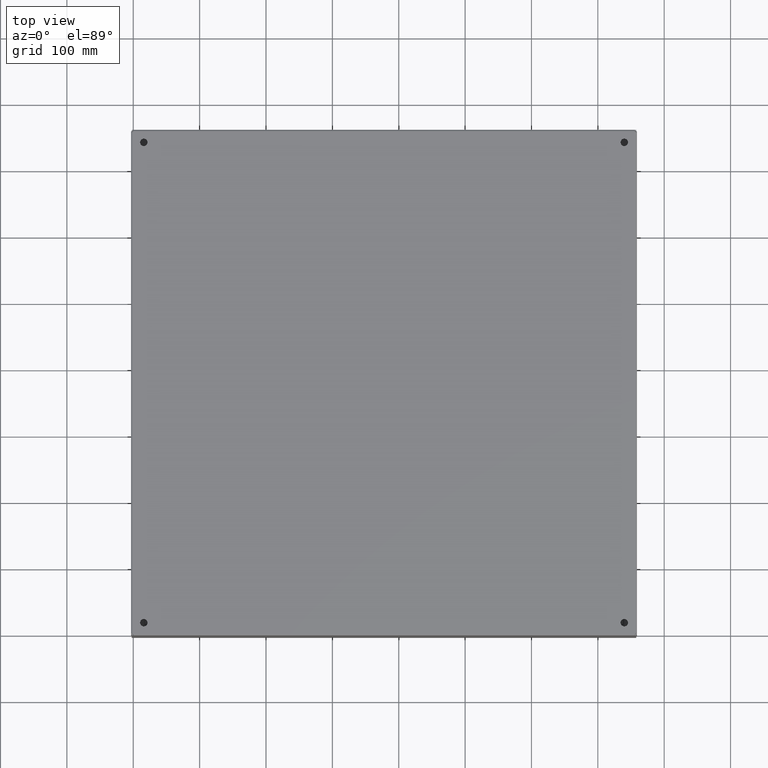
[diagram: clean part render]
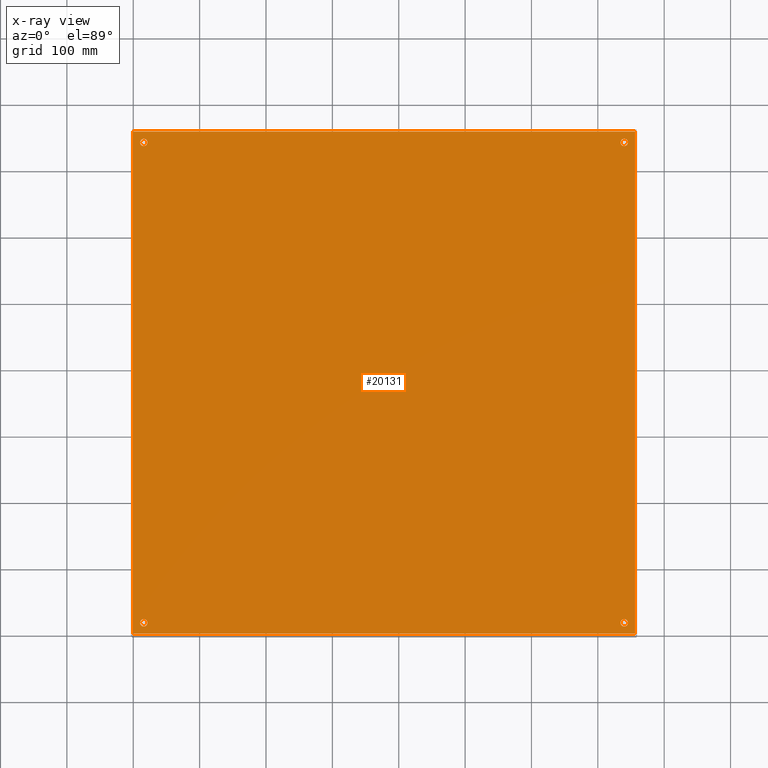
[diagram: x-ray — body ghosted, one internal face saturated and labeled with its STEP entity id]
A machine part, top view, then the same camera in x-ray: the body is ghosted and one INTERNAL B-rep face — a face not visible from any outside direction — is saturated and labeled: STEP entity #20131.
In plain terms, the highlighted planar face has unit normal (0, -0, -1).
Its self-contained STEP definition (entity closure, byte-faithful):
#15287=CARTESIAN_POINT('',(0.531249999999996,0.750000000000002,0.074000000000000));
#15288=VERTEX_POINT('',#15287);
#15289=CARTESIAN_POINT('',(0.749999999999996,0.750000000000002,0.074000000000000));
#15290=DIRECTION('',(0.0,0.0,-1.0));
#15291=DIRECTION('',(1.0,0.0,0.0));
#15292=AXIS2_PLACEMENT_3D('',#15289,#15290,#15291);
#15293=CIRCLE('',#15292,0.218750000000000);
#15294=EDGE_CURVE('',#15288,#15288,#15293,.T.);
#15315=CARTESIAN_POINT('',(29.031249999999972,0.750000000000002,0.074000000000000));
#15316=VERTEX_POINT('',#15315);
#15317=CARTESIAN_POINT('',(29.249999999999975,0.750000000000002,0.074000000000000));
#15318=DIRECTION('',(0.0,0.0,-1.0));
#15319=DIRECTION('',(1.0,0.0,0.0));
#15320=AXIS2_PLACEMENT_3D('',#15317,#15318,#15319);
#15321=CIRCLE('',#15320,0.218750000000000);
#15322=EDGE_CURVE('',#15316,#15316,#15321,.T.);
#15343=CARTESIAN_POINT('',(0.531249999999997,29.250000000000014,0.074000000000000));
#15344=VERTEX_POINT('',#15343);
#15345=CARTESIAN_POINT('',(0.749999999999997,29.250000000000014,0.074000000000000));
#15346=DIRECTION('',(0.0,0.0,-1.0));
#15347=DIRECTION('',(1.0,0.0,0.0));
#15348=AXIS2_PLACEMENT_3D('',#15345,#15346,#15347);
#15349=CIRCLE('',#15348,0.218750000000000);
#15350=EDGE_CURVE('',#15344,#15344,#15349,.T.);
#15371=CARTESIAN_POINT('',(29.031249999999972,29.250000000000014,0.074000000000000));
#15372=VERTEX_POINT('',#15371);
#15373=CARTESIAN_POINT('',(29.249999999999975,29.250000000000014,0.074000000000000));
#15374=DIRECTION('',(0.0,0.0,-1.0));
#15375=DIRECTION('',(1.0,0.0,0.0));
#15376=AXIS2_PLACEMENT_3D('',#15373,#15374,#15375);
#15377=CIRCLE('',#15376,0.218750000000000);
#15378=EDGE_CURVE('',#15372,#15372,#15377,.T.);
#18869=CARTESIAN_POINT('',(29.894749999999995,29.882766839324393,0.074000000000000));
#18870=VERTEX_POINT('',#18869);
#18880=CARTESIAN_POINT('',(29.894749999999995,0.117233160675640,0.074000000000000));
#18881=VERTEX_POINT('',#18880);
#18882=CARTESIAN_POINT('',(29.894749999999995,0.117233160675639,0.074000000000000));
#18883=DIRECTION('',(0.0,1.0,0.0));
#18884=VECTOR('',#18883,29.765533678648755);
#18885=LINE('',#18882,#18884);
#18886=EDGE_CURVE('',#18881,#18870,#18885,.T.);
#19182=CARTESIAN_POINT('',(0.117233160675618,29.894750000000009,0.074000000000006));
#19183=VERTEX_POINT('',#19182);
#19193=CARTESIAN_POINT('',(29.882766839324383,29.894750000000009,0.074000000000000));
#19194=VERTEX_POINT('',#19193);
#19195=CARTESIAN_POINT('',(29.882766839324383,29.894750000000009,0.074000000000000));
#19196=DIRECTION('',(-1.0,0.0,0.0));
#19197=VECTOR('',#19196,29.765533678648765);
#19198=LINE('',#19195,#19197);
#19199=EDGE_CURVE('',#19194,#19183,#19198,.T.);
#19499=CARTESIAN_POINT('',(0.105250000000006,0.117233160675641,0.074000000000000));
#19500=VERTEX_POINT('',#19499);
#19510=CARTESIAN_POINT('',(0.105249999999997,29.882766839324383,0.074000000000000));
#19511=VERTEX_POINT('',#19510);
#19512=CARTESIAN_POINT('',(0.105249999999997,29.882766839324383,0.074000000000000));
#19513=DIRECTION('',(0.0,-1.0,0.0));
#19514=VECTOR('',#19513,29.765533678648744);
#19515=LINE('',#19512,#19514);
#19516=EDGE_CURVE('',#19511,#19500,#19515,.T.);
#19764=CARTESIAN_POINT('',(29.882766839324354,0.105250000000001,0.074000000000000));
#19765=VERTEX_POINT('',#19764);
#19775=CARTESIAN_POINT('',(0.117233160675645,0.105250000000001,0.074000000000000));
#19776=VERTEX_POINT('',#19775);
#19777=CARTESIAN_POINT('',(0.117233160675646,0.105250000000001,0.074000000000000));
#19778=DIRECTION('',(1.0,0.0,0.0));
#19779=VECTOR('',#19778,29.765533678648708);
#19780=LINE('',#19777,#19779);
#19781=EDGE_CURVE('',#19776,#19765,#19780,.T.);
#20068=CARTESIAN_POINT('',(0.062108078884584,0.062108078884584,0.074000000000000));
#20069=DIRECTION('',(0.0,0.0,-1.0));
#20070=DIRECTION('',(1.0,0.0,0.0));
#20071=AXIS2_PLACEMENT_3D('',#20068,#20069,#20070);
#20072=CIRCLE('',#20071,0.070000000000000);
#20073=EDGE_CURVE('',#19500,#19776,#20072,.T.);
#20086=CARTESIAN_POINT('',(14.999999999999996,15.000000000000004,0.074000000000000));
#20087=DIRECTION('',(0.0,0.0,1.0));
#20088=DIRECTION('',(1.0,0.0,0.0));
#20089=AXIS2_PLACEMENT_3D('',#20086,#20087,#20088);
#20090=PLANE('',#20089);
#20091=ORIENTED_EDGE('',*,*,#19781,.T.);
#20092=CARTESIAN_POINT('',(29.937891921115416,0.062108078884581,0.074000000000000));
#20093=DIRECTION('',(0.0,0.0,-1.0));
#20094=DIRECTION('',(1.0,0.0,0.0));
#20095=AXIS2_PLACEMENT_3D('',#20092,#20093,#20094);
#20096=CIRCLE('',#20095,0.070000000000000);
#20097=EDGE_CURVE('',#19765,#18881,#20096,.T.);
#20098=ORIENTED_EDGE('',*,*,#20097,.T.);
#20099=ORIENTED_EDGE('',*,*,#18886,.T.);
#20100=CARTESIAN_POINT('',(29.937891921115433,29.937891921115437,0.074000000000000));
#20101=DIRECTION('',(0.0,0.0,-1.0));
#20102=DIRECTION('',(1.0,0.0,0.0));
#20103=AXIS2_PLACEMENT_3D('',#20100,#20101,#20102);
#20104=CIRCLE('',#20103,0.070000000000000);
#20105=EDGE_CURVE('',#18870,#19194,#20104,.T.);
#20106=ORIENTED_EDGE('',*,*,#20105,.T.);
#20107=ORIENTED_EDGE('',*,*,#19199,.T.);
#20108=CARTESIAN_POINT('',(0.062108078884559,29.937891921115426,0.074000000000000));
#20109=DIRECTION('',(0.0,0.0,-1.0));
#20110=DIRECTION('',(1.0,0.0,0.0));
#20111=AXIS2_PLACEMENT_3D('',#20108,#20109,#20110);
#20112=CIRCLE('',#20111,0.070000000000000);
#20113=EDGE_CURVE('',#19183,#19511,#20112,.T.);
#20114=ORIENTED_EDGE('',*,*,#20113,.T.);
#20115=ORIENTED_EDGE('',*,*,#19516,.T.);
#20116=ORIENTED_EDGE('',*,*,#20073,.T.);
#20117=EDGE_LOOP('',(#20091,#20098,#20099,#20106,#20107,#20114,#20115,#20116));
#20118=FACE_OUTER_BOUND('',#20117,.T.);
#20119=ORIENTED_EDGE('',*,*,#15294,.T.);
#20120=EDGE_LOOP('',(#20119));
#20121=FACE_BOUND('',#20120,.T.);
#20122=ORIENTED_EDGE('',*,*,#15322,.T.);
#20123=EDGE_LOOP('',(#20122));
#20124=FACE_BOUND('',#20123,.T.);
#20125=ORIENTED_EDGE('',*,*,#15350,.T.);
#20126=EDGE_LOOP('',(#20125));
#20127=FACE_BOUND('',#20126,.T.);
#20128=ORIENTED_EDGE('',*,*,#15378,.T.);
#20129=EDGE_LOOP('',(#20128));
#20130=FACE_BOUND('',#20129,.T.);
#20131=ADVANCED_FACE('',(#20118,#20121,#20124,#20127,#20130),#20090,.T.);